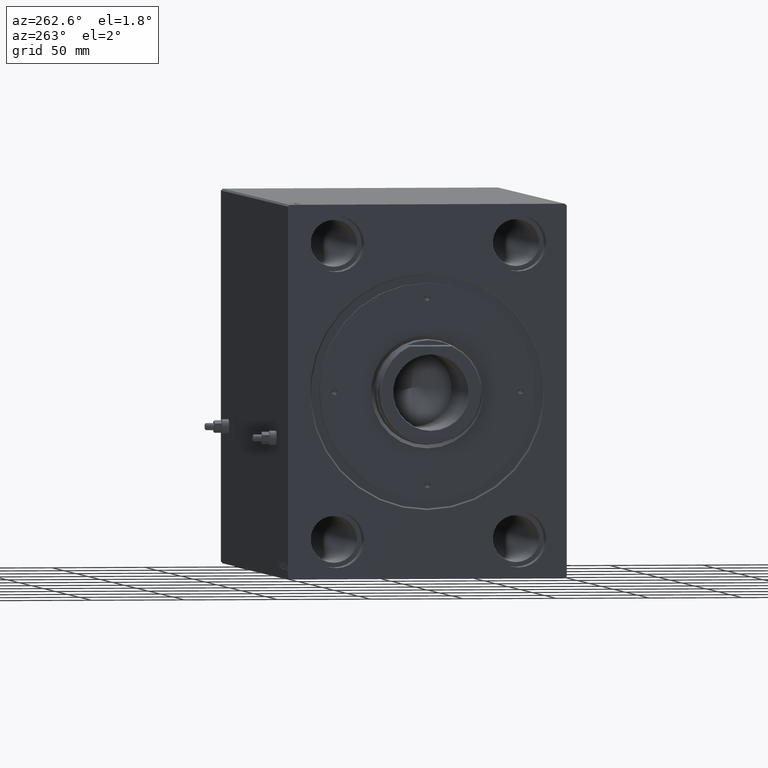
[diagram: clean part render]
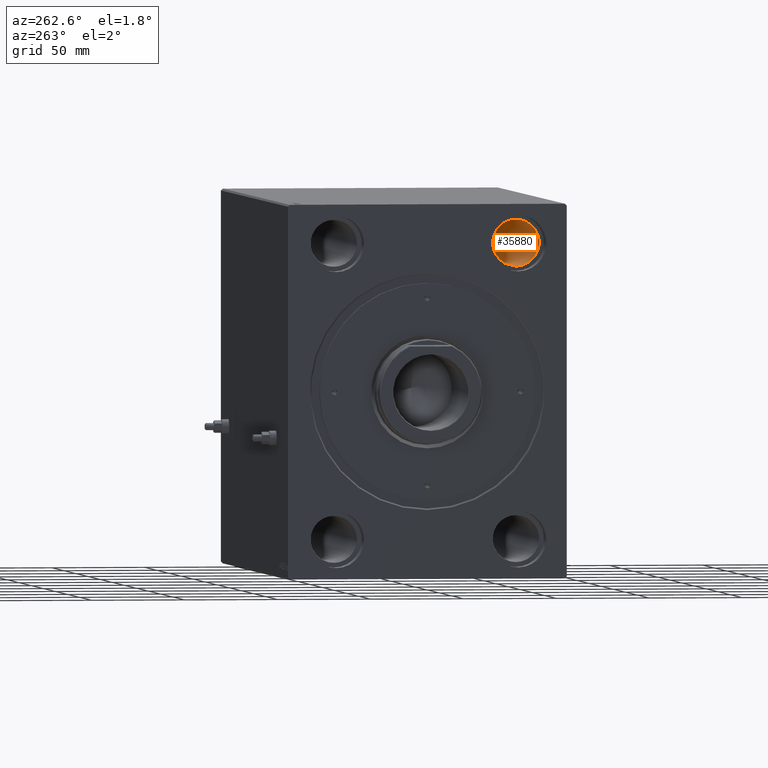
[diagram: same view with one face highlighted and labeled with its STEP entity id]
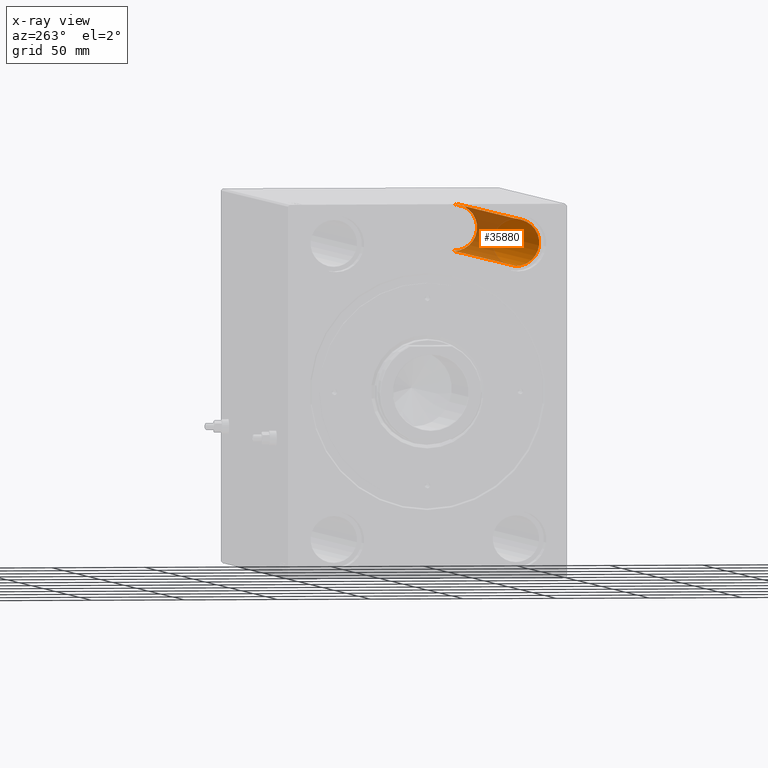
[diagram: x-ray of the same camera — body ghosted, the highlighted face saturated]
A machine part, auxiliary view. The second image highlights one B-rep face of the part: STEP entity #35880.
The next image is the same camera in x-ray: the body ghosted, the highlighted face saturated — about 43% of this face is hidden behind the body in this view.
In plain terms, the highlighted cylindrical surface (edge-blend (fillet) strip) has radius 12.5 mm, axis along (-1, -0, -0).
Its self-contained STEP definition (entity closure, byte-faithful):
#2564 = EDGE_CURVE ( 'NONE', #44146, #27195, #40049, .T. ) ;
#4319 = VECTOR ( 'NONE', #15050, 1000.000000000000000 ) ;
#5116 = ORIENTED_EDGE ( 'NONE', *, *, #42109, .T. ) ;
#6371 = ORIENTED_EDGE ( 'NONE', *, *, #2564, .T. ) ;
#7000 = CARTESIAN_POINT ( 'NONE',  ( 278.0000000000000000, -48.99999999999999289, 66.50000000000000000 ) ) ;
#7503 = ORIENTED_EDGE ( 'NONE', *, *, #15288, .T. ) ;
#7986 = DIRECTION ( 'NONE',  ( 1.000000000000000000, 0.000000000000000000, 0.000000000000000000 ) ) ;
#10147 = DIRECTION ( 'NONE',  ( 0.000000000000000000, 0.000000000000000000, 1.000000000000000000 ) ) ;
#10813 = AXIS2_PLACEMENT_3D ( 'NONE', #13560, #12656, #10147 ) ;
#11722 = DIRECTION ( 'NONE',  ( 0.000000000000000000, 0.000000000000000000, 1.000000000000000000 ) ) ;
#12251 = CARTESIAN_POINT ( 'NONE',  ( 267.6700000000000159, -48.99999999999999289, 66.50000000000000000 ) ) ;
#12656 = DIRECTION ( 'NONE',  ( -1.000000000000000000, -0.000000000000000000, -0.000000000000000000 ) ) ;
#13560 = CARTESIAN_POINT ( 'NONE',  ( 278.0000000000000000, -48.99999999999999289, 79.00000000000001421 ) ) ;
#15050 = DIRECTION ( 'NONE',  ( -1.000000000000000000, -0.000000000000000000, -0.000000000000000000 ) ) ;
#15288 = EDGE_CURVE ( 'NONE', #16335, #32462, #18450, .T. ) ;
#16042 = ORIENTED_EDGE ( 'NONE', *, *, #43380, .F. ) ;
#16335 = VERTEX_POINT ( 'NONE', #24600 ) ;
#18450 = CIRCLE ( 'NONE', #43210, 12.50000000000001066 ) ;
#21799 = VECTOR ( 'NONE', #28452, 1000.000000000000000 ) ;
#22537 = EDGE_LOOP ( 'NONE', ( #7503, #5116, #6371, #16042 ) ) ;
#24600 = CARTESIAN_POINT ( 'NONE',  ( 267.6700000000000159, -48.99999999999999289, 91.50000000000002842 ) ) ;
#26831 = CYLINDRICAL_SURFACE ( 'NONE', #10813, 12.50000000000001066 ) ;
#27195 = VERTEX_POINT ( 'NONE', #27587 ) ;
#27587 = CARTESIAN_POINT ( 'NONE',  ( 10.33000000000000540, -48.99999999999999289, 91.50000000000002842 ) ) ;
#28452 = DIRECTION ( 'NONE',  ( -1.000000000000000000, -0.000000000000000000, -0.000000000000000000 ) ) ;
#29202 = DIRECTION ( 'NONE',  ( 0.000000000000000000, 0.000000000000000000, -1.000000000000000000 ) ) ;
#32289 = DIRECTION ( 'NONE',  ( -1.000000000000000000, 0.000000000000000000, 0.000000000000000000 ) ) ;
#32462 = VERTEX_POINT ( 'NONE', #12251 ) ;
#32627 = LINE ( 'NONE', #39258, #4319 ) ;
#35159 = CARTESIAN_POINT ( 'NONE',  ( 10.33000000000000540, -48.99999999999999289, 66.50000000000000000 ) ) ;
#35880 = ADVANCED_FACE ( 'NONE', ( #40984 ), #26831, .F. ) ;
#35919 = CARTESIAN_POINT ( 'NONE',  ( 10.33000000000000540, -48.99999999999999289, 79.00000000000001421 ) ) ;
#38584 = AXIS2_PLACEMENT_3D ( 'NONE', #35919, #32289, #11722 ) ;
#39170 = LINE ( 'NONE', #7000, #21799 ) ;
#39258 = CARTESIAN_POINT ( 'NONE',  ( 278.0000000000000000, -48.99999999999999289, 91.50000000000002842 ) ) ;
#40049 = CIRCLE ( 'NONE', #38584, 12.50000000000001066 ) ;
#40984 = FACE_OUTER_BOUND ( 'NONE', #22537, .T. ) ;
#42109 = EDGE_CURVE ( 'NONE', #32462, #44146, #39170, .T. ) ;
#43210 = AXIS2_PLACEMENT_3D ( 'NONE', #43815, #7986, #29202 ) ;
#43380 = EDGE_CURVE ( 'NONE', #16335, #27195, #32627, .T. ) ;
#43815 = CARTESIAN_POINT ( 'NONE',  ( 267.6700000000000159, -48.99999999999999289, 79.00000000000001421 ) ) ;
#44146 = VERTEX_POINT ( 'NONE', #35159 ) ;